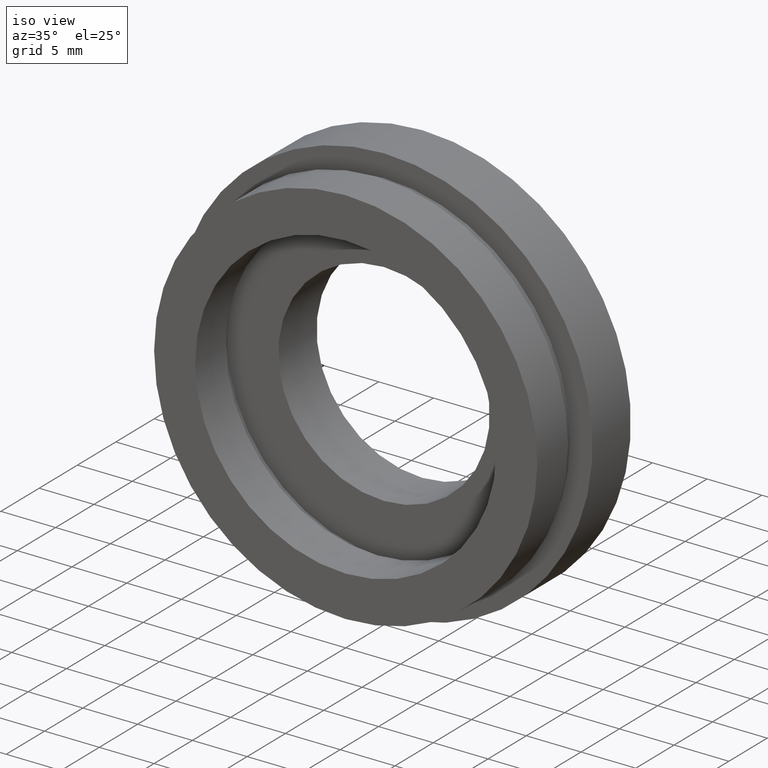
[diagram: clean part render]
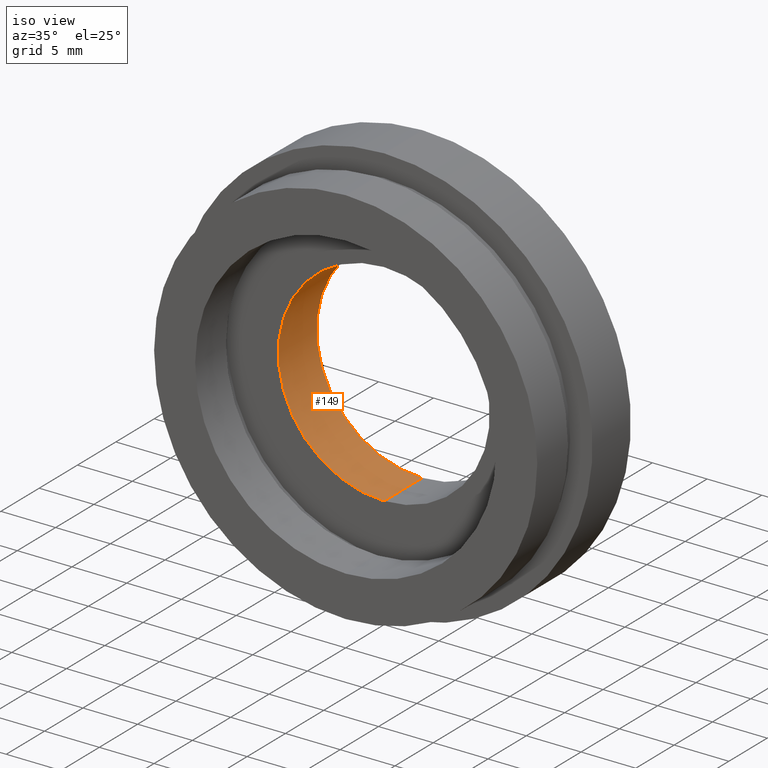
[diagram: same view with one face highlighted and labeled with its STEP entity id]
A machine part, iso view. The second image highlights one B-rep face of the part: STEP entity #149.
In plain terms, the highlighted cylindrical surface (partial cylindrical patch) has radius 9.66 mm, axis along (-0, 1, -0).
Its self-contained STEP definition (entity closure, byte-faithful):
#7 = EDGE_LOOP ( 'NONE', ( #266, #349, #111, #581 ) ) ;
#12 = DIRECTION ( 'NONE',  ( -0.0000000000000000000, 1.000000000000000000, -0.0000000000000000000 ) ) ;
#17 = CARTESIAN_POINT ( 'NONE',  ( 1.183008807976343300E-015, 9.999999999999998200, -9.660000000000000100 ) ) ;
#50 = CARTESIAN_POINT ( 'NONE',  ( 1.183008807976343300E-015, 13.74468085106383300, -9.660000000000000100 ) ) ;
#54 = CIRCLE ( 'NONE', #519, 9.660000000000000100 ) ;
#64 = CARTESIAN_POINT ( 'NONE',  ( 1.183008807976343300E-015, 5.000000000000000900, -9.660000000000000100 ) ) ;
#79 = EDGE_CURVE ( 'NONE', #363, #215, #108, .T. ) ;
#84 = DIRECTION ( 'NONE',  ( -0.0000000000000000000, 1.000000000000000000, -0.0000000000000000000 ) ) ;
#104 = EDGE_CURVE ( 'NONE', #215, #574, #571, .T. ) ;
#108 = CIRCLE ( 'NONE', #407, 9.660000000000000100 ) ;
#111 = ORIENTED_EDGE ( 'NONE', *, *, #135, .T. ) ;
#135 = EDGE_CURVE ( 'NONE', #288, #574, #54, .T. ) ;
#149 = ADVANCED_FACE ( 'NONE', ( #476 ), #391, .F. ) ;
#176 = AXIS2_PLACEMENT_3D ( 'NONE', #405, #550, #256 ) ;
#215 = VERTEX_POINT ( 'NONE', #592 ) ;
#256 = DIRECTION ( 'NONE',  ( 0.0000000000000000000, 0.0000000000000000000, 1.000000000000000000 ) ) ;
#257 = CARTESIAN_POINT ( 'NONE',  ( 0.0000000000000000000, 5.000000000000000900, 0.0000000000000000000 ) ) ;
#258 = LINE ( 'NONE', #50, #556 ) ;
#266 = ORIENTED_EDGE ( 'NONE', *, *, #79, .F. ) ;
#288 = VERTEX_POINT ( 'NONE', #17 ) ;
#289 = DIRECTION ( 'NONE',  ( 0.0000000000000000000, 0.0000000000000000000, 1.000000000000000000 ) ) ;
#291 = CARTESIAN_POINT ( 'NONE',  ( 0.0000000000000000000, 9.999999999999998200, 0.0000000000000000000 ) ) ;
#349 = ORIENTED_EDGE ( 'NONE', *, *, #372, .T. ) ;
#363 = VERTEX_POINT ( 'NONE', #64 ) ;
#372 = EDGE_CURVE ( 'NONE', #363, #288, #258, .T. ) ;
#383 = CARTESIAN_POINT ( 'NONE',  ( 0.0000000000000000000, 13.74468085106383300, 9.660000000000000100 ) ) ;
#391 = CYLINDRICAL_SURFACE ( 'NONE', #176, 9.660000000000000100 ) ;
#405 = CARTESIAN_POINT ( 'NONE',  ( 0.0000000000000000000, 13.74468085106383300, 0.0000000000000000000 ) ) ;
#407 = AXIS2_PLACEMENT_3D ( 'NONE', #257, #12, #496 ) ;
#464 = DIRECTION ( 'NONE',  ( -0.0000000000000000000, 1.000000000000000000, -0.0000000000000000000 ) ) ;
#476 = FACE_OUTER_BOUND ( 'NONE', #7, .T. ) ;
#477 = DIRECTION ( 'NONE',  ( -0.0000000000000000000, 1.000000000000000000, -0.0000000000000000000 ) ) ;
#496 = DIRECTION ( 'NONE',  ( 0.0000000000000000000, 0.0000000000000000000, 1.000000000000000000 ) ) ;
#519 = AXIS2_PLACEMENT_3D ( 'NONE', #291, #477, #289 ) ;
#522 = VECTOR ( 'NONE', #84, 1000.000000000000000 ) ;
#550 = DIRECTION ( 'NONE',  ( -0.0000000000000000000, 1.000000000000000000, -0.0000000000000000000 ) ) ;
#556 = VECTOR ( 'NONE', #464, 1000.000000000000000 ) ;
#571 = LINE ( 'NONE', #383, #522 ) ;
#574 = VERTEX_POINT ( 'NONE', #610 ) ;
#581 = ORIENTED_EDGE ( 'NONE', *, *, #104, .F. ) ;
#592 = CARTESIAN_POINT ( 'NONE',  ( 0.0000000000000000000, 5.000000000000000900, 9.660000000000000100 ) ) ;
#610 = CARTESIAN_POINT ( 'NONE',  ( 0.0000000000000000000, 9.999999999999998200, 9.660000000000000100 ) ) ;